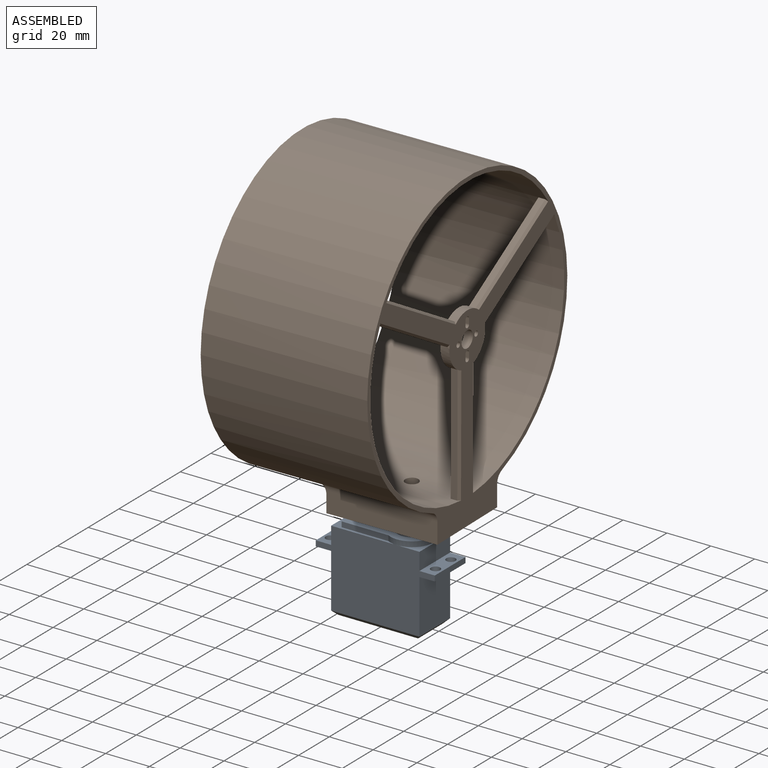
[diagram: assembled view]
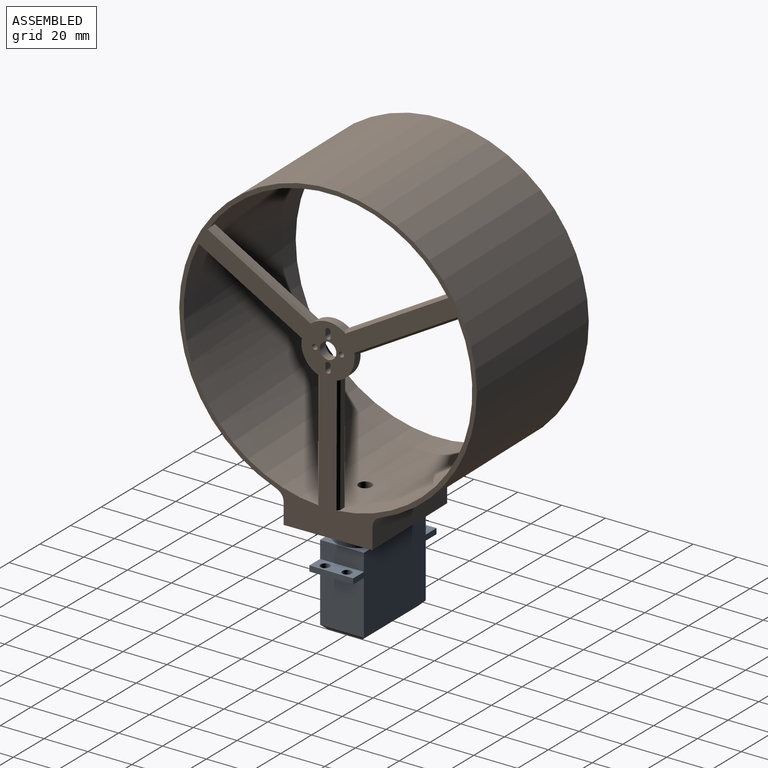
[diagram: assembled view, second angle]
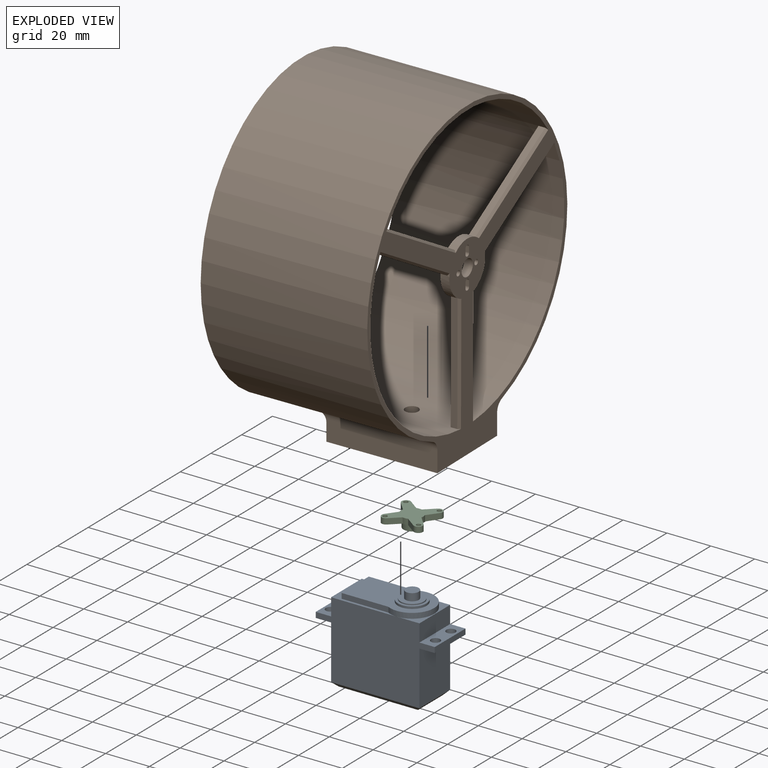
[diagram: exploded view]
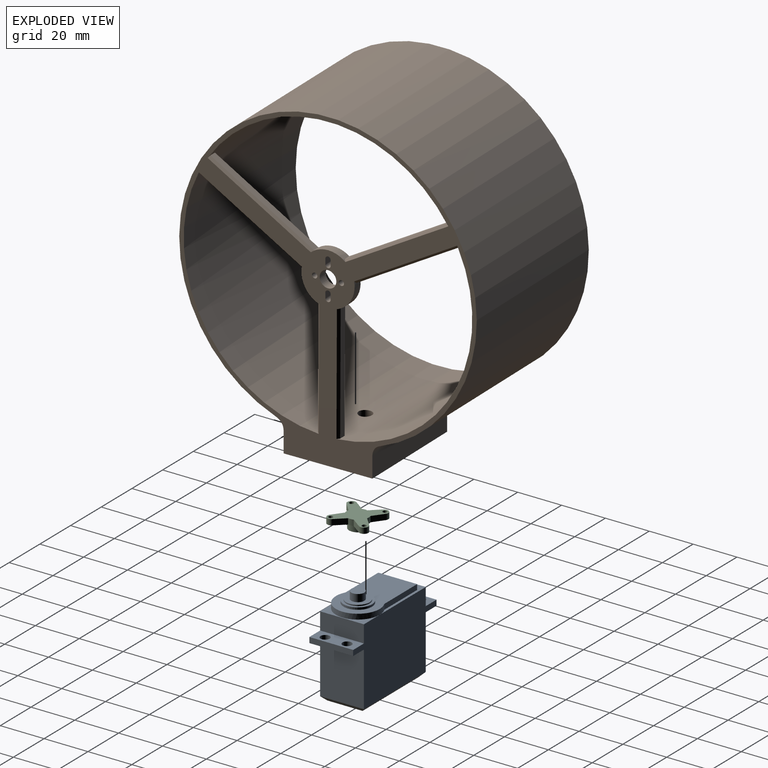
[diagram: exploded view, second angle]
ASSEMBLY  parts=3 mates=2
PART A: 34 faces, bbox 54.3x20x44.3 mm
  f0: plane 30x20mm, normal (0,0,1), area 132.6mm2, adj f3,f4,f6,f23,f24,f25,f26
  f1: plane 24.6x20mm, normal (-1,0,0), area 492mm2, adj f4,f6,f9,f17
  f2: plane 20x7.9mm, normal (1,0,0), area 158mm2, adj f4,f6,f7,f13
  f3: plane 20x7.9mm, normal (-1,0,0), area 158mm2, adj f0,f4,f6,f16
  f4: plane 54.3x35mm, normal (0,-1,0), area 1445.5mm2, adj f0,f1,f2,f3,f5,f7,f10,f13
  f5: plane 24.6x20mm, normal (1,0,0), area 492mm2, adj f4,f6,f12,f14
  f6: plane 54.3x35mm, normal (0,1,0), area 1445.5mm2, adj f0,f1,f2,f3,f5,f7,f11,f13
  f7: plane 20x10.3mm, normal (0,0,1), area 48.9mm2, adj f2,f4,f6,f23
  f8: plane 36.3x16mm, normal (0,0,-1), area 580.8mm2, adj f9,f10,f11,f12
  f9: plane 20x2mm, normal (-0.71,0,-0.71), area 50.9mm2, adj f1,f8,f10,f11
  f10: plane 40.3x2mm, normal (0,-0.71,-0.71), area 108.3mm2, adj f4,f8,f9,f12
  f11: plane 40.3x2mm, normal (0,0.71,-0.71), area 108.3mm2, adj f6,f8,f9,f12
  f12: plane 20x2mm, normal (0.71,0,-0.71), area 50.9mm2, adj f5,f8,f10,f11
  f13: plane 20x7mm, normal (0,0,1), area 112.3mm2, adj f2,f4,f6,f15,f21,f22
  f14: plane 20x7mm, normal (0,0,-1), area 112.3mm2, adj f4,f5,f6,f15,f21,f22
  f15: plane 20x2.5mm, normal (1,0,0), area 50mm2, adj f4,f6,f13,f14
  f16: plane 20x7mm, normal (0,0,1), area 112.3mm2, adj f3,f4,f6,f18,f19,f20
  f17: plane 20x7mm, normal (0,0,-1), area 112.3mm2, adj f1,f4,f6,f18,f19,f20
  f18: plane 20x2.5mm, normal (-1,0,0), area 50mm2, adj f4,f6,f16,f17
  f19: cylinder r=2.1mm len=4.2mm, axis (0,0,1), area 33mm2, adj f16,f17
  f20: cylinder r=2.1mm len=4.2mm, axis (0,0,1), area 33mm2, adj f16,f17
  f21: cylinder r=2.1mm len=4.2mm, axis (0,0,1), area 33mm2, adj f13,f14
  f22: cylinder r=2.1mm len=4.2mm, axis (0,0,1), area 33mm2, adj f13,f14
  f23: cylinder r=10mm len=20mm, axis (0,0,-1), area 98.6mm2, adj f0,f7,f24,f26,f27
  f24: plane 21.34x2.4mm, normal (0,1,0), area 51.2mm2, adj f0,f23,f25,f27
  f25: plane 17.7x2.4mm, normal (-1,0,0), area 42.5mm2, adj f0,f24,f26,f27
  f26: plane 21.34x2.4mm, normal (0,-1,0), area 51.2mm2, adj f0,f23,f25,f27
  f27: plane 36x20mm, normal (0,0,1), area 491.8mm2, adj f23,f24,f25,f26,f28
  f28: cylinder r=6.5mm len=13mm, axis (0,0,-1), area 40.8mm2, adj f27,f29
  f29: plane 13x13mm, normal (0,0,1), area 42.8mm2, adj f28,f30
  f30: cylinder r=5.35mm len=10.7mm, axis (0,0,-1), area 16.8mm2, adj f29,f31
  f31: plane 10.7x10.7mm, normal (0,0,1), area 61.6mm2, adj f30,f33
  f32: plane 6x6mm, normal (0,0,1), area 28.3mm2, adj f33
  f33: cylinder r=3mm len=6mm, axis (0,0,-1), area 63.5mm2, adj f31,f32
PART B: 48 faces, bbox 134x148.8x75 mm
  f0: cylinder r=67mm len=134mm, axis (0,0,-1), area 28959.5mm2, adj f1,f5,f36,f37,f38
  f1: plane 144x134mm, normal (0,0,-1), area 2929.4mm2, adj f0,f3,f4,f6,f9,f12,f14,f16
  f2: plane 117.25x101.73mm, normal (0,0,1), area 1977.4mm2, adj f3,f6,f7,f8,f9,f10,f11,f12
  f3: cylinder r=65mm len=130mm, axis (0,0,-1), area 30484.6mm2, adj f1,f2,f4,f5,f7,f8,f10,f11
  f4: cylinder r=65mm len=1mm, axis (0,0,-1), area 0.5mm2, adj f1,f3,f21
  f5: plane 134x134mm, normal (0,0,1), area 829.4mm2, adj f0,f3
  f6: cylinder r=12mm len=13.5mm, axis (0,0,-1), area 60.3mm2, adj f1,f2,f7,f15,f17,f21
  f7: plane 46.68x26.95mm, normal (-0.5,-0.87,0), area 161.7mm2, adj f2,f3,f6,f21
  f8: plane 46.68x26.95mm, normal (0.5,0.87,0), area 161.7mm2, adj f2,f3,f9,f20
  f9: cylinder r=12mm len=15.6mm, axis (0,0,-1), area 60.4mm2, adj f1,f2,f8,f10,f19,f20
  f10: plane 46.68x26.95mm, normal (-0.5,0.87,0), area 161.7mm2, adj f2,f3,f9,f19
  f11: plane 46.68x26.95mm, normal (0.5,-0.87,0), area 161.7mm2, adj f2,f3,f12,f16
  f12: cylinder r=12mm len=13.51mm, axis (0,0,-1), area 60.4mm2, adj f1,f2,f11,f13,f16,f18
  f13: plane 53.88x3mm, normal (1,0,0), area 161.6mm2, adj f2,f3,f12,f18
  f14: cylinder r=3.75mm len=7.5mm, axis (0,0,-1), area 94.2mm2, adj f1,f2
  f15: plane 53.92x3mm, normal (-1,0,0), area 161.8mm2, adj f2,f3,f6,f17
  f16: plane 46.84x27.86mm, normal (0.35,-0.61,-0.71), area 76mm2, adj f1,f3,f11,f12
  f17: plane 54x1.21mm, normal (-0.71,0,-0.71), area 76mm2, adj f1,f3,f6,f15
  f18: plane 53.96x1.21mm, normal (0.71,0,-0.71), area 75.9mm2, adj f1,f3,f12,f13
  f19: plane 47.25x27.62mm, normal (-0.35,0.61,-0.71), area 76mm2, adj f1,f3,f9,f10
  f20: plane 47.25x27.62mm, normal (0.35,0.61,-0.71), area 76mm2, adj f1,f3,f8,f9
  f21: plane 46.84x27.86mm, normal (-0.35,-0.61,-0.71), area 76mm2, adj f1,f4,f6,f7
  f22: cylinder r=1.2mm len=4mm, axis (0,0,-1), area 15.1mm2, adj f1,f2,f23,f25
  f23: plane 4x2.4mm, normal (1,0,0), area 9.6mm2, adj f1,f2,f22,f24
  f24: cylinder r=1.2mm len=4mm, axis (0,0,-1), area 15.1mm2, adj f1,f2,f23,f25
  f25: plane 4x2.4mm, normal (-1,0,0), area 9.6mm2, adj f1,f2,f22,f24
  f26: cylinder r=1.2mm len=4mm, axis (0,0,-1), area 30.2mm2, adj f1,f2
  f27: plane 4x2.4mm, normal (-1,0,0), area 9.6mm2, adj f1,f2,f28,f30
  f28: cylinder r=1.2mm len=4mm, axis (0,0,-1), area 15.1mm2, adj f1,f2,f27,f29
  f29: plane 4x2.4mm, normal (1,0,0), area 9.6mm2, adj f1,f2,f28,f30
  f30: cylinder r=1.2mm len=4mm, axis (0,0,-1), area 15.1mm2, adj f1,f2,f27,f29
  f31: cylinder r=1.2mm len=4mm, axis (0,0,-1), area 30.2mm2, adj f1,f2
  f32: plane 50.26x9.48mm, normal (1,0,0), area 474.1mm2, adj f1,f33,f35,f37,f38
  f33: plane 50x40mm, normal (0,-1,0), area 1961.5mm2, adj f1,f32,f34,f35,f39,f41,f43,f45
  f34: plane 50.26x9.48mm, normal (-1,0,0), area 474.1mm2, adj f1,f33,f35,f36,f37
  f35: plane 40x7.83mm, normal (0,0,1), area 237.5mm2, adj f32,f33,f34,f37
  f36: cylinder r=5mm len=55mm, axis (0,0,-1), area 317.7mm2, adj f0,f1,f34,f37
  f37: torus R=72mm, axis (0,0,-1), area 333.9mm2, adj f0,f32,f34,f35,f36,f38
  f38: cylinder r=5mm len=55mm, axis (0,0,-1), area 317.7mm2, adj f0,f1,f32,f37
  f39: cylinder r=0.9mm len=12mm, axis (0,-1,0), area 67.9mm2, adj f33,f40
  f40: plane 1.8x1.8mm, normal (0,-1,0), area 2.5mm2, adj f39
  f41: cylinder r=0.9mm len=12mm, axis (0,-1,0), area 67.9mm2, adj f33,f42
  f42: plane 1.8x1.8mm, normal (0,-1,0), area 2.5mm2, adj f41
  f43: cylinder r=0.9mm len=12mm, axis (0,-1,0), area 67.9mm2, adj f33,f44
  f44: plane 1.8x1.8mm, normal (0,-1,0), area 2.5mm2, adj f43
  f45: cylinder r=0.9mm len=12mm, axis (0,-1,0), area 67.9mm2, adj f33,f46
  f46: plane 1.8x1.8mm, normal (0,-1,0), area 2.5mm2, adj f45
  f47: cylinder r=3mm len=12.07mm, axis (0,-1,0), area 226.8mm2, adj f3,f33
PART C: 26 faces, bbox 24.1x24.1x5.6 mm
  f0: cylinder r=3mm len=6mm, axis (0,0,-1), area 67.9mm2, adj f24,f25
  f1: cylinder r=2mm len=3.98mm, axis (0,0,-1), area 15.3mm2, adj f2,f18,f21,f22
  f2: plane 5.94x2.6mm, normal (-1,0.1,0), area 15.5mm2, adj f1,f3,f21,f22
  f3: cylinder r=5mm len=2.6mm, axis (0,0,-1), area 6.4mm2, adj f2,f4,f21,f22
  f4: plane 5.94x2.6mm, normal (-0.1,1,0), area 15.5mm2, adj f3,f5,f21,f22
  f5: cylinder r=2mm len=3.98mm, axis (0,0,-1), area 15.3mm2, adj f4,f6,f21,f22
  f6: plane 5.94x2.6mm, normal (-0.1,-1,0), area 15.5mm2, adj f5,f7,f21,f22
  f7: cylinder r=5mm len=2.6mm, axis (0,0,-1), area 6.4mm2, adj f6,f8,f21,f22
  f8: plane 5.94x2.6mm, normal (-1,-0.1,0), area 15.5mm2, adj f7,f9,f21,f22
  f9: cylinder r=2mm len=3.98mm, axis (0,0,-1), area 15.3mm2, adj f8,f10,f21,f22
  f10: plane 5.94x2.6mm, normal (1,-0.1,0), area 15.5mm2, adj f9,f11,f21,f22
  f11: cylinder r=5mm len=2.6mm, axis (0,0,-1), area 6.4mm2, adj f10,f12,f21,f22
  f12: plane 5.94x2.6mm, normal (0.1,-1,0), area 15.5mm2, adj f11,f13,f21,f22
  f13: cylinder r=2mm len=3.98mm, axis (0,0,-1), area 15.3mm2, adj f12,f14,f21,f22
  f14: plane 5.94x2.6mm, normal (0.1,1,0), area 15.5mm2, adj f13,f15,f21,f22
  f15: cylinder r=5mm len=2.6mm, axis (0,0,-1), area 6.4mm2, adj f14,f18,f21,f22
  f16: cylinder r=1mm len=2.6mm, axis (0,0,-1), area 16.3mm2, adj f21,f22
  f17: cylinder r=1mm len=2.6mm, axis (0,0,-1), area 16.3mm2, adj f21,f22
  f18: plane 5.94x2.6mm, normal (1,0.1,0), area 15.5mm2, adj f1,f15,f21,f22
  f19: cylinder r=1mm len=2.6mm, axis (0,0,-1), area 16.3mm2, adj f21,f22
  f20: cylinder r=1mm len=2.6mm, axis (0,0,-1), area 16.3mm2, adj f21,f22
  f21: plane 24.08x24.08mm, normal (0,0,1), area 186.4mm2, adj f1,f2,f3,f4,f5,f6,f7,f8
  f22: plane 24.08x24.08mm, normal (0,0,-1), area 136.2mm2, adj f1,f2,f3,f4,f5,f6,f7,f8
  f23: cylinder r=4mm len=8mm, axis (0,0,1), area 75.4mm2, adj f22,f24
  f24: plane 8x8mm, normal (0,0,-1), area 22mm2, adj f0,f23
  f25: plane 6x6mm, normal (0,0,-1), area 28.3mm2, adj f0
PLACE A t=(-20.15,-10,0)mm
PLACE B rot(axis=(0.58,-0.57,-0.57),119.4deg) t=(33.1,2.68,123.27)mm
PLACE C rot(axis=(0,0,1),138.1deg) t=(9.85,0,43.67)mm
MATE revolute B.f41 <-> C.f17  axis (0,0,-1) through (17.61,-6.96,46.27)mm
MATE revolute A.f23 <-> C.f0  axis (0,0,1) through (9.85,0,44.27)mm
